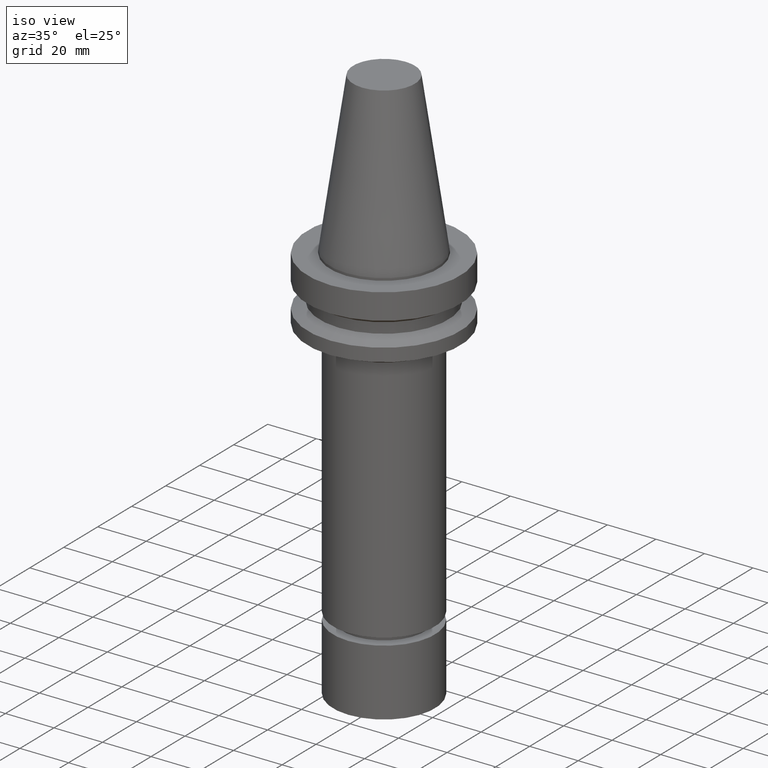
[diagram: clean part render]
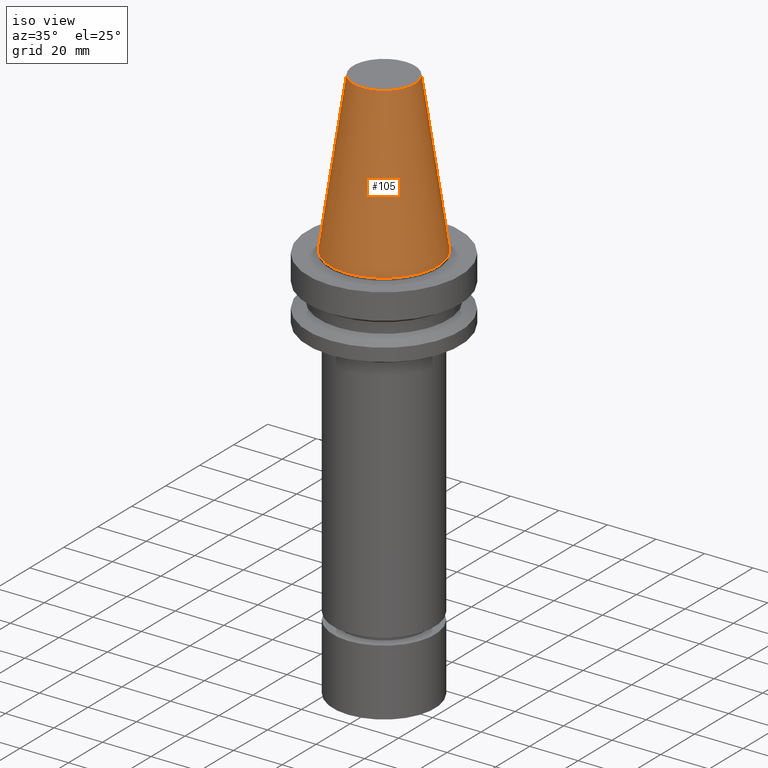
[diagram: same view with one face highlighted and labeled with its STEP entity id]
A machine part, iso view. The second image highlights one B-rep face of the part: STEP entity #105.
In plain terms, the highlighted conical surface has half-angle 8.297 deg.
Its self-contained STEP definition (entity closure, byte-faithful):
#88=EDGE_CURVE('Unnamed[1]',#222,#222,#223,.T.);
#105=ADVANCED_FACE('Unnamed[1]',(#246,#247),#248,.T.);
#109=EDGE_CURVE('Unnamed[1]',#253,#253,#254,.T.);
#222=VERTEX_POINT('',#403);
#223=CIRCLE('',#404,22.225);
#246=FACE_BOUND('',#433,.T.);
#247=FACE_BOUND('',#434,.T.);
#248=CONICAL_SURFACE('',#435,17.45625,0.144812498238936);
#253=VERTEX_POINT('',#442);
#254=CIRCLE('',#443,12.6875000000001);
#403=CARTESIAN_POINT('',(1.71319921032766E-029,22.2250000000001,-2.8153873565375E-013));
#404=AXIS2_PLACEMENT_3D('',#604,#605,#606);
#433=EDGE_LOOP('',(#627));
#434=EDGE_LOOP('',(#628));
#435=AXIS2_PLACEMENT_3D('',#629,#630,#631);
#442=CARTESIAN_POINT('',(-4.00459503321185E-015,12.6875000000002,65.4000000000001));
#443=AXIS2_PLACEMENT_3D('',#635,#636,#637);
#604=CARTESIAN_POINT('',(1.74032777401202E-029,7.76847211679871E-014,-2.8421709430404E-013));
#605=DIRECTION('',(6.12323399573677E-017,7.77674569754456E-018,-1.0));
#606=DIRECTION('',(-5.3033410670834E-033,1.0,7.77674569754456E-018));
#627=ORIENTED_EDGE('',*,*,#88,.F.);
#628=ORIENTED_EDGE('',*,*,#109,.T.);
#629=CARTESIAN_POINT('',(-2.00229751660592E-015,7.74304215836732E-014,32.6999999999999));
#630=DIRECTION('',(6.12323399573677E-017,7.77674569770485E-018,-1.0));
#631=DIRECTION('',(-5.30334106709014E-033,1.0,7.77674569770485E-018));
#635=CARTESIAN_POINT('',(-4.00459503321185E-015,7.71761219993592E-014,65.4000000000001));
#636=DIRECTION('',(6.12323399573677E-017,7.77674569773097E-018,-1.0));
#637=DIRECTION('',(-5.30334106710194E-033,1.0,7.77674569773097E-018));